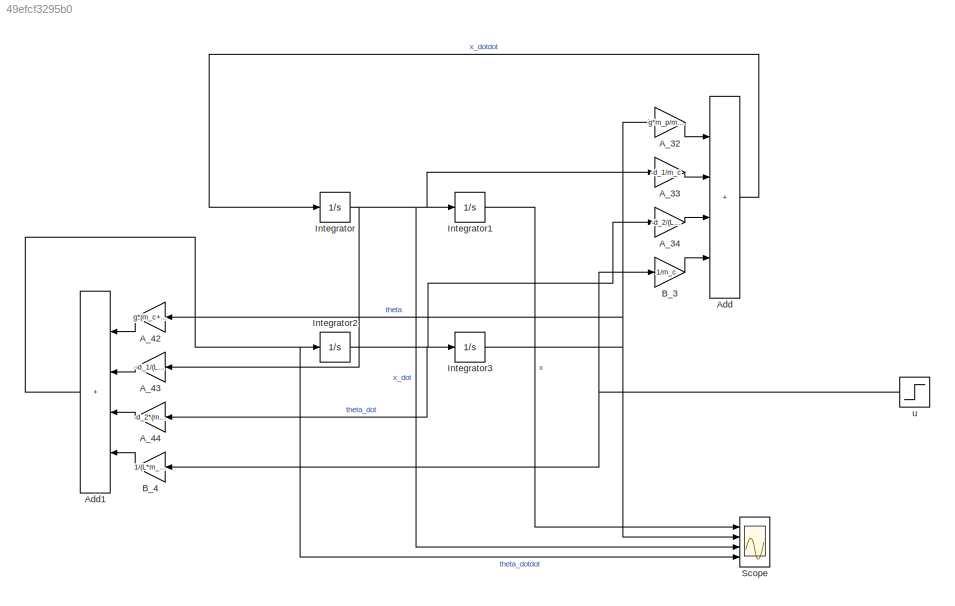
MODEL slx_49efcf3295b0
KIND model
CONFIG AbsTol = auto
CONFIG EnableMultiTasking = off
CONFIG FixedStep = auto
CONFIG MaxStep = auto
CONFIG MinStep = auto
CONFIG RelTol = 1e-3
CONFIG SampleTimeConstraint = Unconstrained
CONFIG SolverName = VariableStepAuto
CONFIG StartTime = 0.0
CONFIG StopTime = 50
BLOCK [Gain] A_32
  Gain = g*m_p/m_c
BLOCK [Gain] A_33
  Gain = -d_1/m_c
BLOCK [Gain] A_34
  Gain = -d_2/(L*m_c)
BLOCK [Gain] A_42
  Gain = g*(m_c+m_p)/(m_c*L)
BLOCK [Gain] A_43
  Gain = -d_1/(L*m_c)
BLOCK [Gain] A_44
  Gain = -d_2*(m_c+m_p)/(L*L*m_c*m_p)
BLOCK [Sum] Add
  IconShape = rectangular
  Inputs = ++++
  Ports = [4, 1]
BLOCK [Sum] Add1
  IconShape = rectangular
  Inputs = ++++
  Ports = [4, 1]
BLOCK [Gain] B_3
  Gain = 1/m_c
BLOCK [Gain] B_4
  Gain = 1/(L*m_c)
BLOCK [Integrator] Integrator
  Ports = [1, 1]
BLOCK [Integrator] Integrator1
  Ports = [1, 1]
BLOCK [Integrator] Integrator2
  Ports = [1, 1]
BLOCK [Integrator] Integrator3
  Ports = [1, 1]
BLOCK [Scope] Scope
  Floating = off
  NumInputPorts = 4
  Ports = [4]
  ScopeSpecificationString = Simulink.scopes.TimeScopeBlockCfg('CurrentConfiguration', extmgr.ConfigurationSet(extmgr.Configuration('Core','General UI',true),extmgr.Configuration('Core','Source UI',true),extmgr.Configuration('Sources','WiredSimulink',true),extmgr.Configuration('Visuals','Time Domain',true,'SerializedDisplays',{struct('MinYLimReal','-2087605394974707038040961354937579868180268451230019971935440874003845087232....<+1954ch>
BLOCK [Step] u
  SampleTime = 0
LINE A_32:1 -> Add:1
LINE A_33:1 -> Add:2
LINE A_34:1 -> Add:3
LINE A_42:1 -> Add1:1
LINE A_43:1 -> Add1:2
LINE A_44:1 -> Add1:3
NET Add1:1 -> Integrator2:1, Scope:4
LINE Add:1 -> Integrator:1
LINE B_3:1 -> Add:4
LINE B_4:1 -> Add1:4
LINE Integrator1:1 -> Scope:1
NET Integrator2:1 -> A_34:1, A_44:1, Integrator3:1
NET Integrator3:1 -> A_32:1, A_42:1, Scope:2
NET Integrator:1 -> A_33:1, A_43:1, Integrator1:1, Scope:3
NET u:1 -> B_3:1, B_4:1
note: NET lines group one-source signal fan-out (src -> all destinations, sorted); 1:1 wires keep LINE
